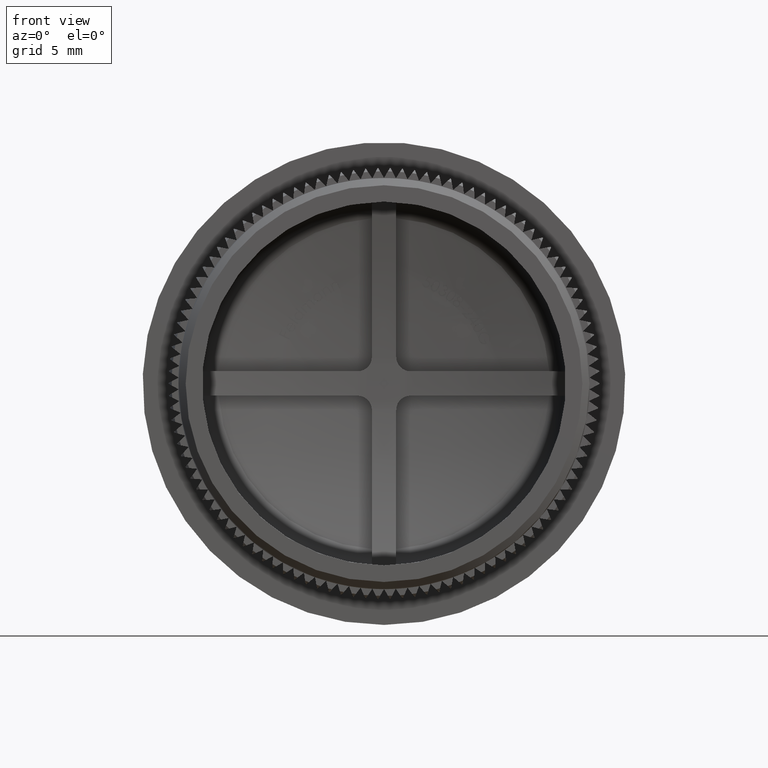
[diagram: clean part render]
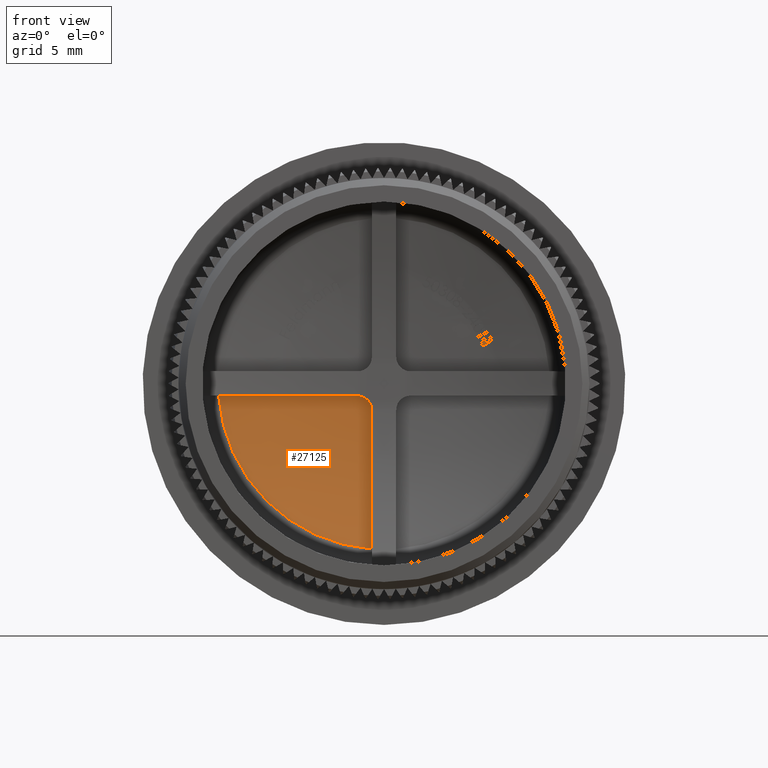
[diagram: same view with one face highlighted and labeled with its STEP entity id]
A machine part, front view. The second image highlights one B-rep face of the part: STEP entity #27125.
In plain terms, the highlighted spherical surface has radius 45.8204 mm.
Its self-contained STEP definition (entity closure, byte-faithful):
#650 = FACE_OUTER_BOUND ( 'NONE', #8756, .T. ) ;
#1188 = CARTESIAN_POINT ( 'NONE',  ( -1.849999999999999200, 15.45474672470686900, -0.8499999999999999800 ) ) ;
#1448 = DIRECTION ( 'NONE',  ( 1.000000000000000000, 0.0000000000000000000, 3.393427372357000500E-016 ) ) ;
#2568 = ORIENTED_EDGE ( 'NONE', *, *, #25217, .T. ) ;
#3015 = VERTEX_POINT ( 'NONE', #24865 ) ;
#4531 = CARTESIAN_POINT ( 'NONE',  ( 0.0000000000000000000, -30.32041666666353300, -0.8499999999999999800 ) ) ;
#5342 = B_SPLINE_CURVE_WITH_KNOTS ( 'NONE', 3,
 ( #23854, #32244, #29603, #35215, #35099, #21177, #18329, #1188 ),
 .UNSPECIFIED., .F., .F.,
 ( 4, 2, 2, 4 ),
 ( 0.0000000000000000000, 0.0003906582634203053200, 0.0007813165268406106300, 0.001562633053681220600 ),
 .UNSPECIFIED. ) ;
#5407 = VERTEX_POINT ( 'NONE', #6170 ) ;
#6170 = CARTESIAN_POINT ( 'NONE',  ( -11.54781709785642400, 14.01282147111647800, -0.8500000000000000900 ) ) ;
#6777 = ORIENTED_EDGE ( 'NONE', *, *, #13161, .T. ) ;
#7211 = ORIENTED_EDGE ( 'NONE', *, *, #25596, .T. ) ;
#8195 = CIRCLE ( 'NONE', #13566, 45.81253194821977100 ) ;
#8720 = CIRCLE ( 'NONE', #14687, 45.81253194821977100 ) ;
#8756 = EDGE_LOOP ( 'NONE', ( #6777, #7211, #2568, #19811 ) ) ;
#9714 = DIRECTION ( 'NONE',  ( -3.384246713119113600E-016, 4.468152303754466200E-015, 1.000000000000000000 ) ) ;
#11112 = CARTESIAN_POINT ( 'NONE',  ( 0.0000000000000000000, 14.01282147111647400, 0.0000000000000000000 ) ) ;
#11961 = DIRECTION ( 'NONE',  ( 0.0000000000000000000, 0.0000000000000000000, 1.000000000000000000 ) ) ;
#12091 = DIRECTION ( 'NONE',  ( 1.000000000000000000, 0.0000000000000000000, 0.0000000000000000000 ) ) ;
#12649 = AXIS2_PLACEMENT_3D ( 'NONE', #28825, #11961, #12091 ) ;
#13038 = DIRECTION ( 'NONE',  ( -0.0000000000000000000, -0.0000000000000000000, 1.000000000000000000 ) ) ;
#13161 = EDGE_CURVE ( 'NONE', #3015, #32237, #8720, .T. ) ;
#13566 = AXIS2_PLACEMENT_3D ( 'NONE', #4531, #13038, #35862 ) ;
#13583 = DIRECTION ( 'NONE',  ( 0.0000000000000000000, 0.0000000000000000000, -1.000000000000000000 ) ) ;
#14687 = AXIS2_PLACEMENT_3D ( 'NONE', #20961, #1448, #9714 ) ;
#16056 = CIRCLE ( 'NONE', #16727, 11.57905780819602400 ) ;
#16727 = AXIS2_PLACEMENT_3D ( 'NONE', #11112, #19376, #13583 ) ;
#18329 = CARTESIAN_POINT ( 'NONE',  ( -1.586030102979649100, 15.46541504947749600, -0.8499999999999997600 ) ) ;
#19191 = VERTEX_POINT ( 'NONE', #30601 ) ;
#19376 = DIRECTION ( 'NONE',  ( -0.0000000000000000000, -1.000000000000000000, -0.0000000000000000000 ) ) ;
#19811 = ORIENTED_EDGE ( 'NONE', *, *, #28224, .T. ) ;
#20961 = CARTESIAN_POINT ( 'NONE',  ( -0.8500000000000004200, -30.32041666666353300, -2.884413266503451500E-016 ) ) ;
#21177 = CARTESIAN_POINT ( 'NONE',  ( -1.327036228234191900, 15.47148945971773900, -0.9586169661904783100 ) ) ;
#21446 = CARTESIAN_POINT ( 'NONE',  ( -0.8499999999999997600, 15.45474672470686900, -1.849999999999999600 ) ) ;
#23854 = CARTESIAN_POINT ( 'NONE',  ( -0.8499999999999997600, 15.45474672470686900, -1.849999999999999600 ) ) ;
#24865 = CARTESIAN_POINT ( 'NONE',  ( -0.8499999999999965400, 14.01282147111647800, -11.54781709785642400 ) ) ;
#25217 = EDGE_CURVE ( 'NONE', #19191, #5407, #8195, .T. ) ;
#25596 = EDGE_CURVE ( 'NONE', #32237, #19191, #5342, .T. ) ;
#27125 = ADVANCED_FACE ( 'NONE', ( #650 ), #32870, .F. ) ;
#28224 = EDGE_CURVE ( 'NONE', #5407, #3015, #16056, .T. ) ;
#28825 = CARTESIAN_POINT ( 'NONE',  ( 0.0000000000000000000, -30.32041666666353300, 0.0000000000000000000 ) ) ;
#29603 = CARTESIAN_POINT ( 'NONE',  ( -0.8759566691318300100, 15.46426718836329800, -1.588453064328347700 ) ) ;
#30601 = CARTESIAN_POINT ( 'NONE',  ( -1.849999999999999200, 15.45474672470686900, -0.8499999999999999800 ) ) ;
#32237 = VERTEX_POINT ( 'NONE', #21446 ) ;
#32244 = CARTESIAN_POINT ( 'NONE',  ( -0.8499999999999997600, 15.46008085610235100, -1.718015818281493100 ) ) ;
#32870 = SPHERICAL_SURFACE ( 'NONE', #12649, 45.82041666666353300 ) ;
#35099 = CARTESIAN_POINT ( 'NONE',  ( -1.050438448951352100, 15.47148137955112700, -1.235414748818011200 ) ) ;
#35215 = CARTESIAN_POINT ( 'NONE',  ( -0.9762163965805426000, 15.46999847083387200, -1.346343942393920700 ) ) ;
#35862 = DIRECTION ( 'NONE',  ( -1.000000000000000000, 1.953869990455342700E-014, 0.0000000000000000000 ) ) ;